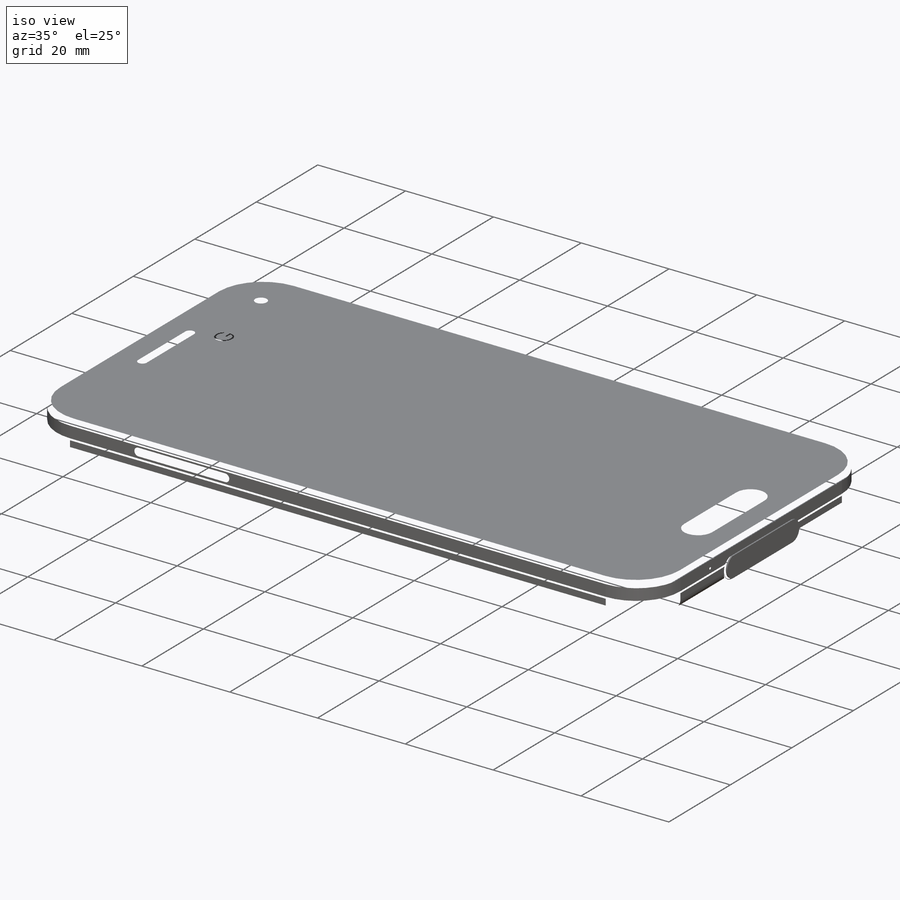
[diagram: iso view]
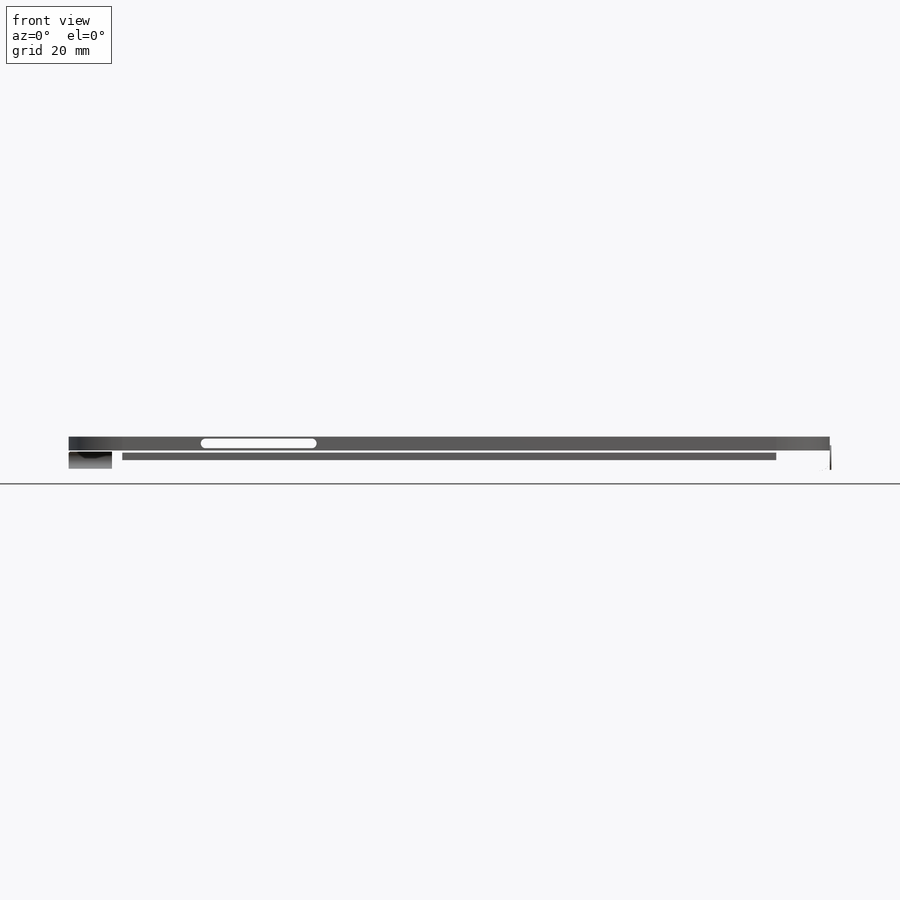
[diagram: front view]
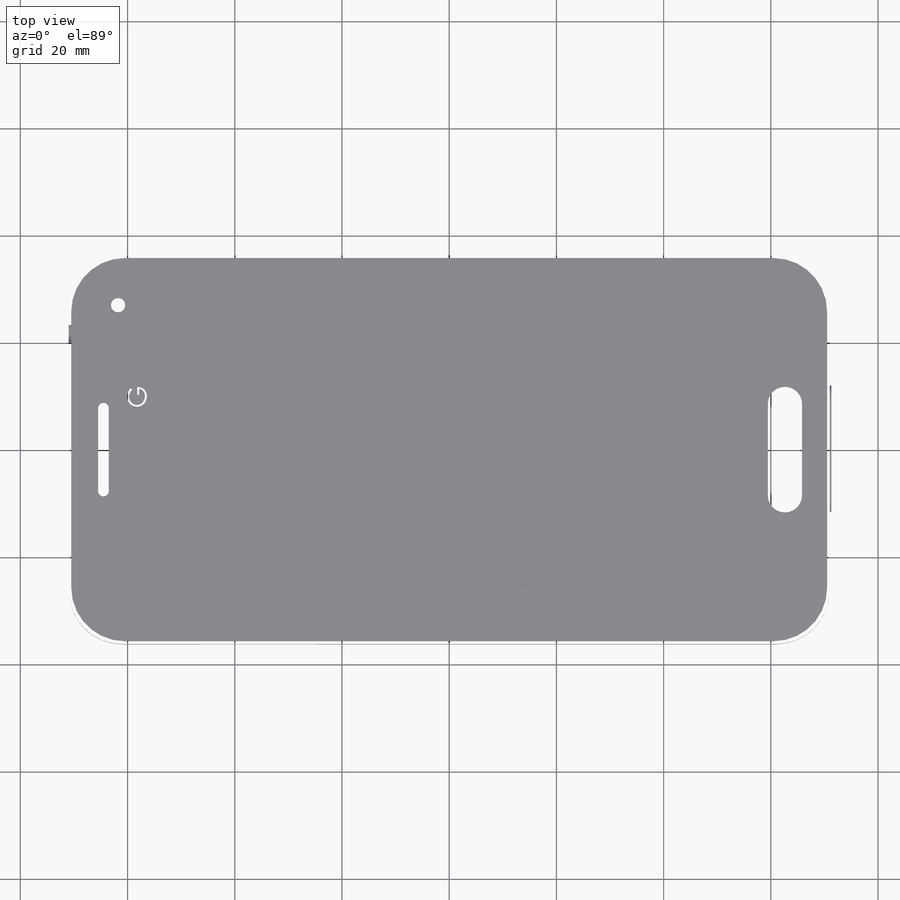
[diagram: top view]
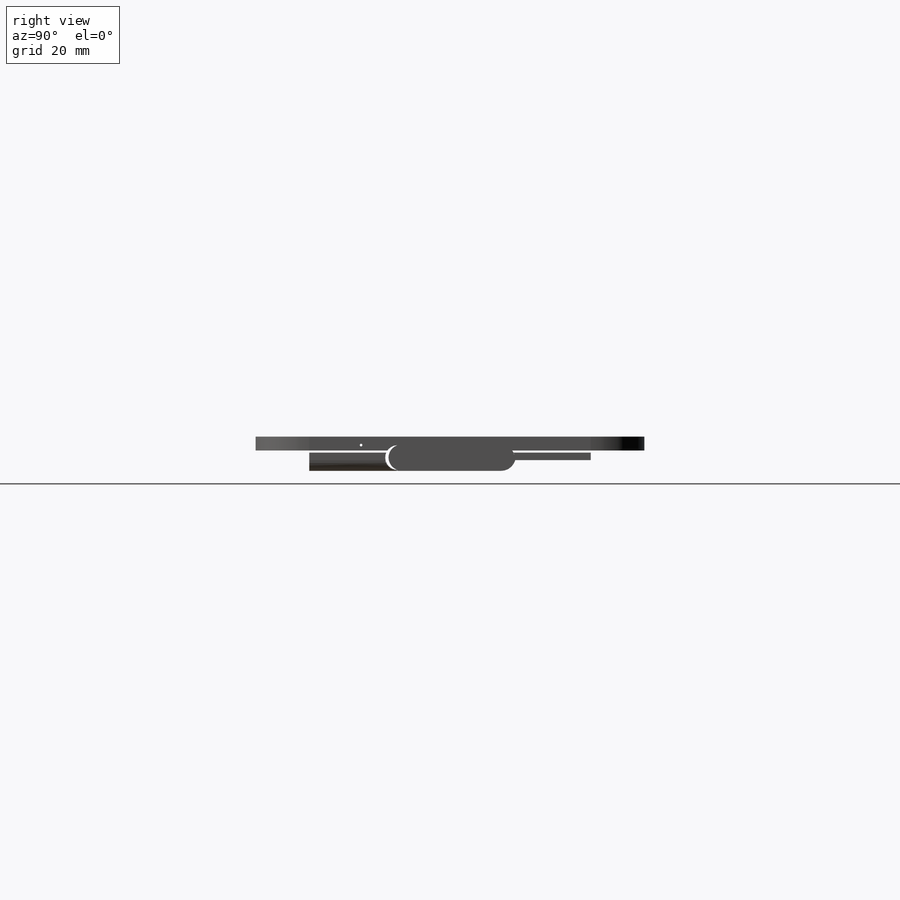
[diagram: right view]
SOLIDWORKS PART (.sldprt)
format: sldprt  version: not decoded by parser v0  size: 3,183,104 bytes
history: native  units: mm
features: sketch x31, cut_extrude x13, extrude x8, fillet x6, pattern_linear x5, hole x2, material x1, plane x1, sweep x1 (+13 scaffold rows collapsed)
feature tree (81):
  scaffold x13  (default folders/planes/origin — collapsed)
  material  "Material <not specified>"
  sketch  "Sketch1"  dims[D1=72.5mm D2=142.0mm]
  extrude  "Boss-Extrude1"  Depth=8.1mm
  fillet  "Fillet1"  Radius=10mm
  fillet  "Fillet2"  Radius=2mm
  sketch  "Sketch2"  dims[D1=3.6mm]
  extrude  "Boss-Extrude2"  Depth=2.1mm
  sketch  "Sketch3"  dims[D1=3.2mm]
  cut_extrude  "Cut-Extrude1"  Depth=8.1mm
  sketch  "Sketch4"  dims[D1=2.0mm]
  extrude  "Boss-Extrude3"  Depth=2mm
  fillet  "Fillet3"  Radius=0.5mm
  fillet  "Fillet4"  Radius=0.5mm
  sketch  "Sketch5"
  cut_extrude  "Cut-Extrude2"  Depth=0.1mm
  sketch  "Sketch6"
  cut_extrude  "Cut-Extrude3"  Depth=0.1mm
  sketch  "Sketch7"  dims[D1=34.0mm]
  cut_extrude  "Cut-Extrude4"  Depth=0.2mm
  fillet  "Fillet5"  Radius=0.2mm
  sketch  "Sketch8"
  cut_extrude  "Cut-Extrude5"  Depth=0.1mm
  sketch  "Sketch9"  dims[D2=0.5mm D1=5.0mm]
  cut_extrude  "Cut-Extrude6"  Depth=0.3mm
  pattern_linear  "LPattern1"  Count1=2 Count2=1 Spacing1=1.5mm Spacing2=10mm
  sketch  "Sketch10"  dims[D1=0.2mm]
  hole  "#97 (0.0059) Diameter Hole3"  Diameter=1.27mm Depth=0.2mm
  sketch  "3DSketch3"
  sketch  "Sketch16"  dims[hole-wizard template sketch: 46 standard entries collapsed; hole parameters kept: c15.Hole Dia.=1.27mm c15.Hole Depth=0.2mm c15.D3=~14.816244mm c15.Drill Angle=118.0deg]
  pattern_linear  "LPattern2"  Count1=43 Count2=23 Spacing1=3mm Spacing2=3mm
  sketch  "Sketch17"  dims[D1=3.0mm]
  hole  "#97 (0.0059) Diameter Hole4"  Diameter=1.27mm Depth=0.2mm
  sketch  "3DSketch4"
  sketch  "Sketch18"  dims[hole-wizard template sketch: 46 standard entries collapsed; hole parameters kept: c15.Hole Dia.=1.27mm c15.Hole Depth=0.2mm c15.D3=~14.816244mm c15.Drill Angle=118.0deg]
  pattern_linear  "LPattern3"  Count1=23 Count2=2 Spacing1=3mm Spacing2=3mm
  sketch  "Sketch19"
  extrude  "Boss-Extrude4"  Depth=0.3mm
  sketch  "Sketch20"
  extrude  "Boss-Extrude5"  Depth=0.3mm
  sketch  "Sketch21"  dims[D1=~2.750896mm D2=~19.044237mm]
  extrude  "Boss-Extrude7"  Depth=3.2mm
  sketch  "Sketch24"  dims[D1=2.3mm]
  cut_extrude  "Cut-Extrude11"  Depth=3.2mm
  sketch  "Sketch25"
  sketch  "Sketch26"
  cut_extrude  "Cut-Extrude12"  Depth=3mm
  plane  "Plane1"  Offset=1.5mm
  sketch  "Sketch27"
  sketch  "Sketch28"
  sweep  "Cut-Sweep1"
  pattern_linear  "LPattern4"  Count1=2 Count2=1 Spacing1=3mm Spacing2=10mm
  extrude  "Boss-Extrude10"  Depth=0.3mm
  sketch  "Sketch29"  dims[D3=10.0mm D1=0.5mm D2=0.5mm]
  cut_extrude  "Cut-Extrude13"  Depth=0.3mm
  sketch  "Sketch30"  dims[D1=1.0mm D2=5.0mm]
  cut_extrude  "Cut-Extrude14"  Depth=0.3mm
  sketch  "Sketch31"
  cut_extrude  "Cut-Extrude15"  Depth=0.3mm
  pattern_linear  "LPattern5"  Count1=6 Count2=1 Spacing1=3mm Spacing2=10mm
  sketch  "Sketch33"
  sketch  "Sketch34"
  extrude  "Boss-Extrude12"  Depth=0.5mm
  fillet  "Fillet9"  Radius=0.5mm
  sketch  "Sketch35"
  sketch  "Sketch36"
  cut_extrude  "Cut-Extrude16"  Depth=0.1mm
  sketch  "Sketch37"
  cut_extrude  "Cut-Extrude17"  Depth=0.1mm
decode coverage: 48 of 66 modeling features carry decoded parameters
note: ~ marks probable driven/reference dimensions
note: suppression state not decoded; provenance and decode notes live in map.json
